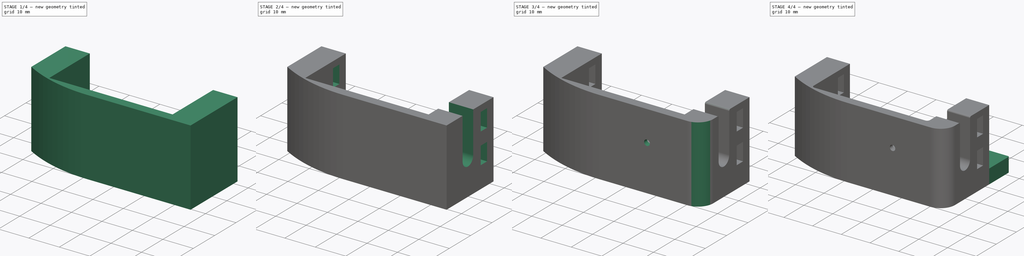
[diagram: build sequence overview — one tinted view per stage of 4, left to right]
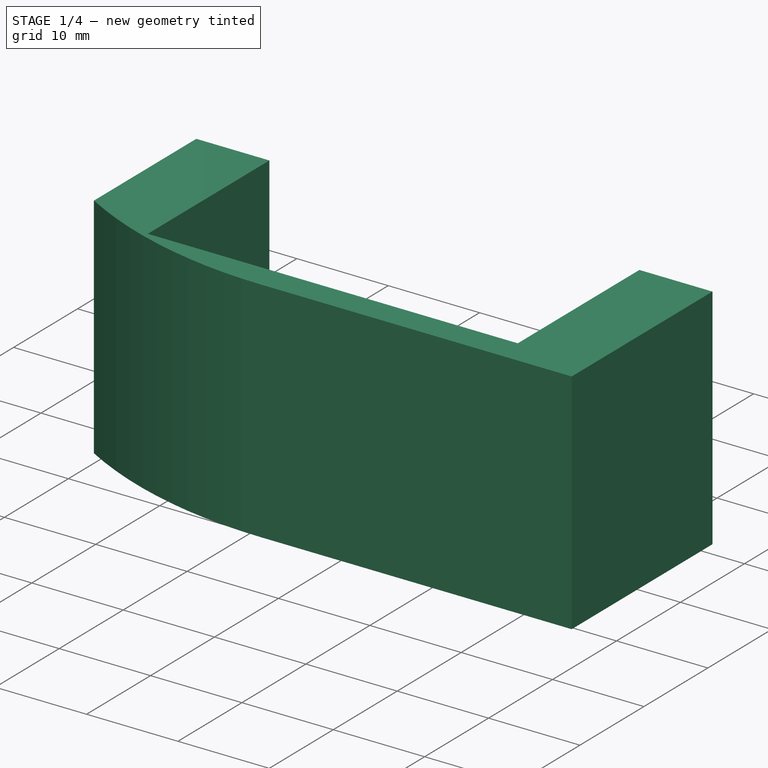
[diagram: stage 1 of 4 — iso view after this stage's code; geometry added in this stage tinted green]
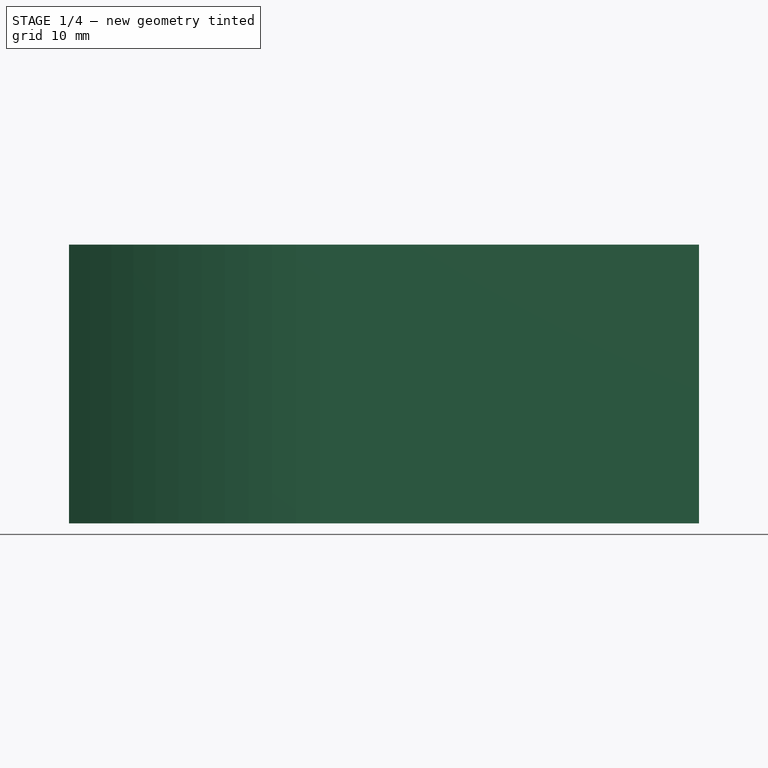
[diagram: stage 1 of 4 — front view after this stage's code; geometry added in this stage tinted green]
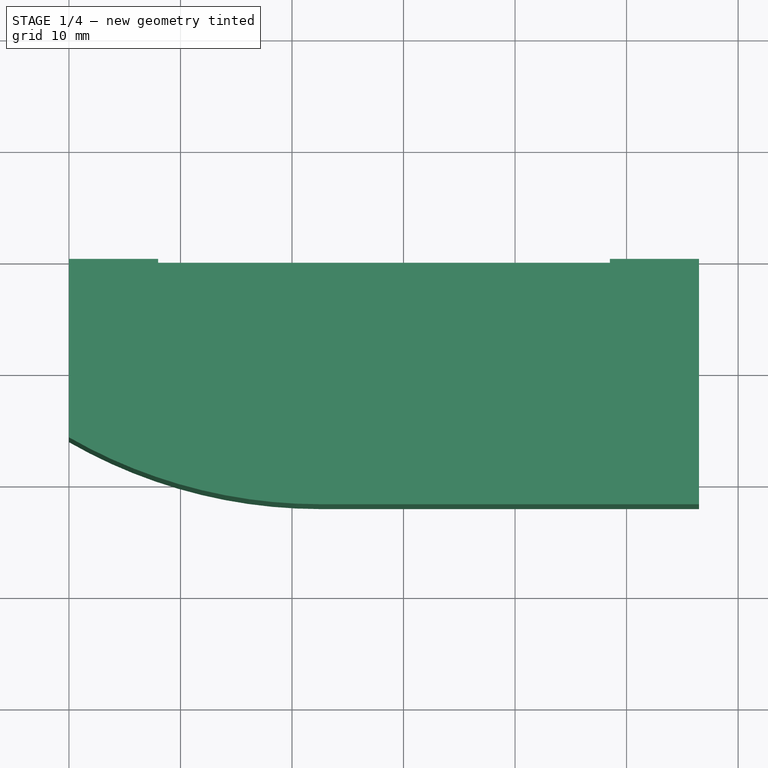
[diagram: stage 1 of 4 — top view after this stage's code; geometry added in this stage tinted green]
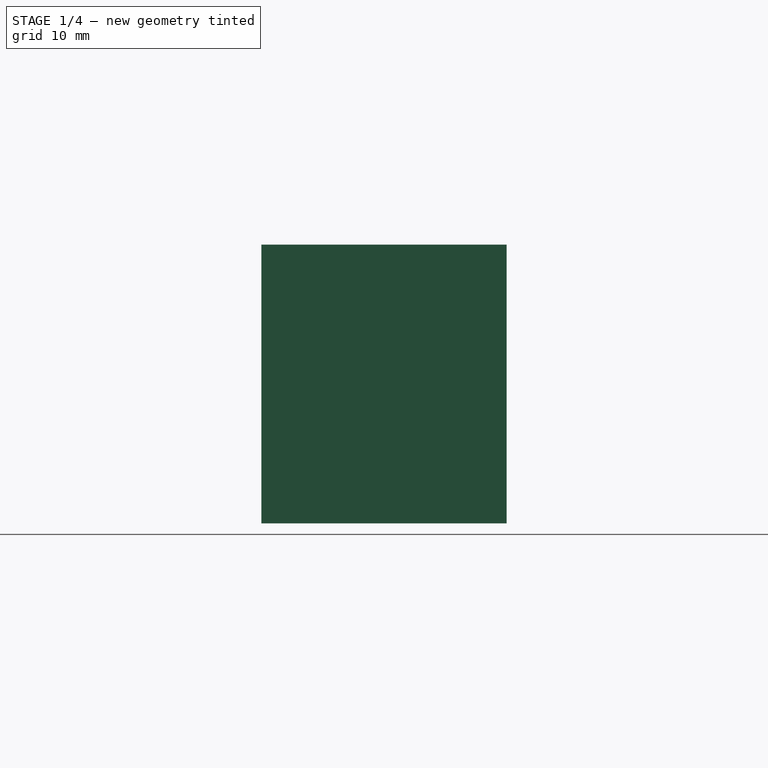
[diagram: stage 1 of 4 — right view after this stage's code; geometry added in this stage tinted green]
FCSTD DOCUMENT  (FreeCAD 0.18R4 (GitTag))
Label: Wrist _Counterpart
License: CreativeCommons Attribution-NonCommercial
LicenseURL: http://creativecommons.org/licenses/by-nc/4.0/
objects: Sketcher::SketchObject×9, PartDesign::Pocket×7, PartDesign::Fillet×4, PartDesign::Pad×2, PartDesign::Body×1
note: 32 computed .brp shape members not serialized (recipe doc carries the construction recipe); baked Part::Feature solids carry a one-line shape summary decoded from their .brp

FEATURE [Sketcher::SketchObject] Sketch125
  MapMode = 5
  Support = -> [XY_Plane010]
  sketch-geometry (4):
    g0: LineSegment StartX=0 StartY=0 StartZ=0 EndX=56.5 EndY=0 EndZ=0
    g1: LineSegment StartX=56.5 StartY=0 StartZ=0 EndX=56.5 EndY=-22 EndZ=0
    g2: LineSegment StartX=56.5 StartY=-22 StartZ=0 EndX=0 EndY=-22 EndZ=0
    g3: LineSegment StartX=0 StartY=-22 StartZ=0 EndX=0 EndY=0 EndZ=0
  constraints (11):
    c: Coincident(g0,g1)
    c: Coincident(g1,g2)
    c: Coincident(g2,g3)
    c: Coincident(g3,g0)
    c: Horizontal(g0)
    c: Horizontal(g2)
    c: Vertical(g1)
    c: Vertical(g3)
    c: Coincident(g0,g-1)
    c: DistanceX(g2,g2) = 56.5
    c: DistanceY(g3,g3) = 22
FEATURE [PartDesign::Pad] Pad023  label="Baseplate001"
  Length = 25
  Length2 = 100
  Profile = -> Sketch125
  Type = 0
FEATURE [Sketcher::SketchObject] Sketch126
  MapMode = 5
  Placement = pos=(0,0,25) rot=(0,0,1;0rad)
  Support = -> [Pad023]
  sketch-geometry (4):
    g0: LineSegment StartX=8 StartY=0 StartZ=0 EndX=48.5 EndY=0 EndZ=0
    g1: LineSegment StartX=48.5 StartY=0 StartZ=0 EndX=48.5 EndY=-19 EndZ=0
    g2: LineSegment StartX=48.5 StartY=-19 StartZ=0 EndX=8 EndY=-19 EndZ=0
    g3: LineSegment StartX=8 StartY=-19 StartZ=0 EndX=8 EndY=0 EndZ=0
  constraints (12):
    c: Coincident(g0,g1)
    c: Coincident(g1,g2)
    c: Coincident(g2,g3)
    c: Coincident(g3,g0)
    c: Horizontal(g0)
    c: Horizontal(g2)
    c: Vertical(g1)
    c: Vertical(g3)
    c: PointOnObject(g0,g-1)
    c: DistanceY(g3,g3) = 19
    c: DistanceX(g0,g0) = 40.5
    c: DistanceX(g-1,g0) = 8
FEATURE [PartDesign::Pocket] Pocket095  label="Servopocket"
  BaseFeature = -> Pad023
  Length = 20
  Length2 = 100
  Profile = -> Sketch126
  Type = 0
FEATURE [Sketcher::SketchObject] Sketch127
  MapMode = 5
  Placement = pos=(0,0,25) rot=(0,0,1;0rad)
  Support = -> [Pocket095]
  sketch-geometry (5):
    g0: ArcOfCircle CenterX=22.5 CenterY=23.1875 CenterZ=0 NormalX=0 NormalY=0 NormalZ=1 AngleXU=0 Radius=45.1875 StartAngle=4.19118 EndAngle=4.71239
    g1: LineSegment StartX=22.5 StartY=-22 StartZ=0 EndX=56.5 EndY=-22 EndZ=0
    g2: LineSegment StartX=56.5 StartY=-22 StartZ=0 EndX=56.5 EndY=-23 EndZ=0
    g3: LineSegment StartX=56.5 StartY=-23 StartZ=0 EndX=0 EndY=-23 EndZ=0
    g4: LineSegment StartX=0 StartY=-23 StartZ=0 EndX=0 EndY=-16 EndZ=0
  constraints (15):
    c: PointOnObject(g0,g-2)
    c: Horizontal(g1)
    c: Coincident(g2,g1)
    c: Vertical(g2)
    c: Coincident(g3,g2)
    c: Horizontal(g3)
    c: Coincident(g4,g3)
    c: Coincident(g4,g0)
    c: Vertical(g4)
    c: Tangent(g1,g0) = -1.5708
    c: DistanceX(g0,g0) = 22.5
    c: DistanceY(g4,g4) = 7
    c: DistanceY(g2,g2) = 1
    c: DistanceY(g0,g-1) = 16
    c: DistanceX(g3,g3) = 56.5
FEATURE [PartDesign::Pocket] Pocket096  label="Swing Counterpart"
  BaseFeature = -> Pocket095
  Length = 25
  Length2 = 100
  Profile = -> Sketch127
  Type = 0
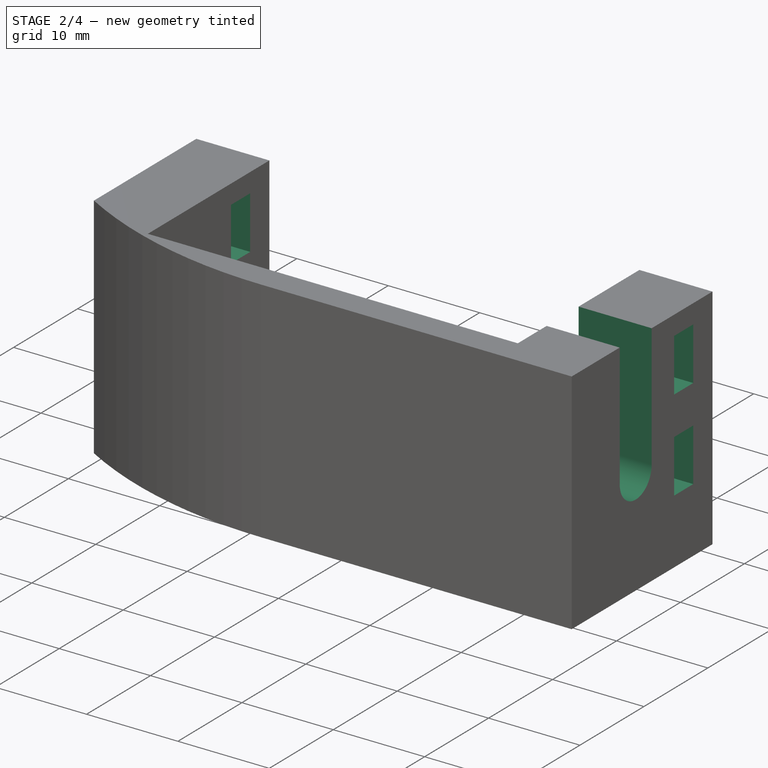
[diagram: stage 2 of 4 — iso view after this stage's code; geometry added in this stage tinted green]
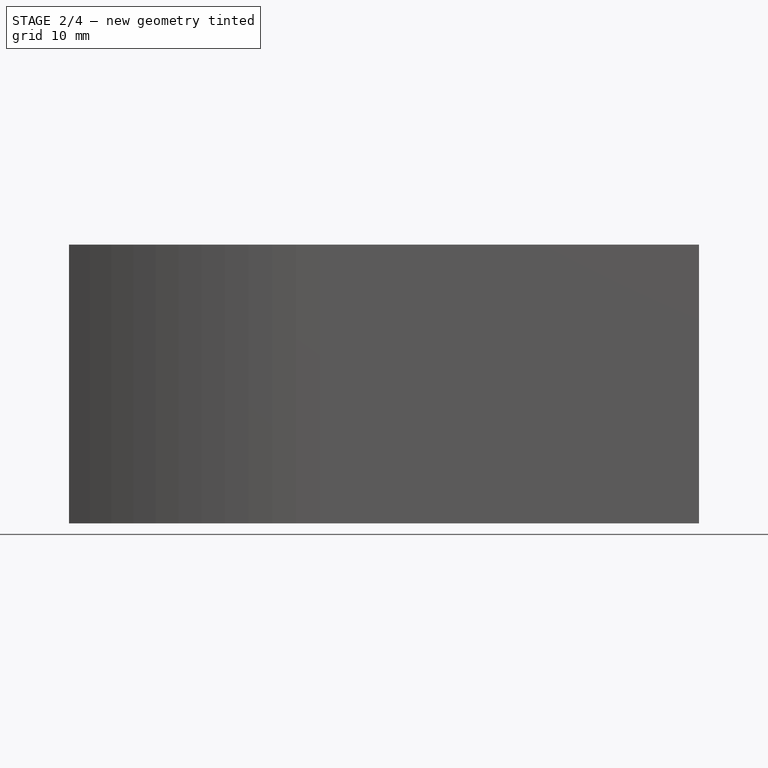
[diagram: stage 2 of 4 — front view after this stage's code; geometry added in this stage tinted green]
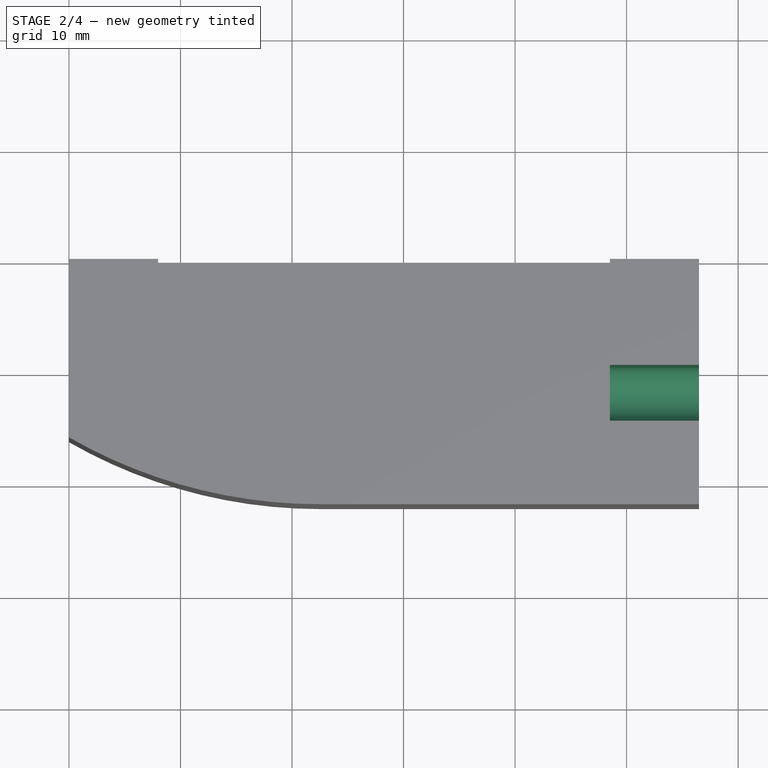
[diagram: stage 2 of 4 — top view after this stage's code; geometry added in this stage tinted green]
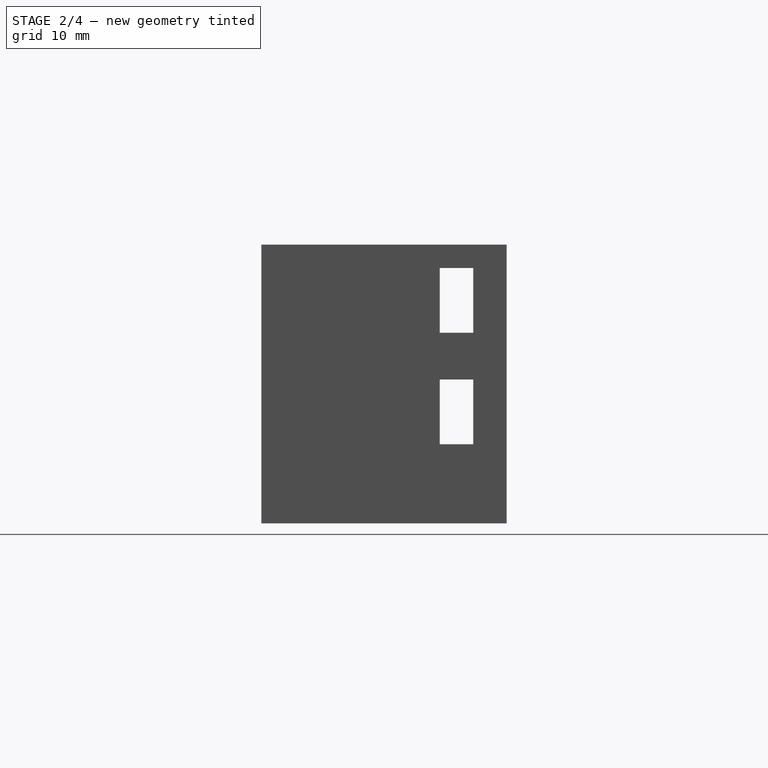
[diagram: stage 2 of 4 — right view after this stage's code; geometry added in this stage tinted green]
FEATURE [Sketcher::SketchObject] Sketch128
  MapMode = 5
  Placement = pos=(56.5,0,0) rot=(0.57735,0.57735,0.57735;2.0944rad)
  Support = -> [Pocket096]
  sketch-geometry (8):
    g0: LineSegment StartX=-6 StartY=22.9 StartZ=0 EndX=-3 EndY=22.9 EndZ=0
    g1: LineSegment StartX=-3 StartY=22.9 StartZ=0 EndX=-3 EndY=17.1 EndZ=0
    g2: LineSegment StartX=-3 StartY=17.1 StartZ=0 EndX=-6 EndY=17.1 EndZ=0
    g3: LineSegment StartX=-6 StartY=17.1 StartZ=0 EndX=-6 EndY=22.9 EndZ=0
    g4: LineSegment StartX=-6 StartY=12.9 StartZ=0 EndX=-3 EndY=12.9 EndZ=0
    g5: LineSegment StartX=-3 StartY=12.9 StartZ=0 EndX=-3 EndY=7.1 EndZ=0
    g6: LineSegment StartX=-3 StartY=7.1 StartZ=0 EndX=-6 EndY=7.1 EndZ=0
    g7: LineSegment StartX=-6 StartY=7.1 StartZ=0 EndX=-6 EndY=12.9 EndZ=0
  constraints (24):
    c: Coincident(g0,g1)
    c: Coincident(g1,g2)
    c: Coincident(g2,g3)
    c: Coincident(g3,g0)
    c: Horizontal(g0)
    c: Horizontal(g2)
    c: Vertical(g1)
    c: Vertical(g3)
    c: Coincident(g4,g5)
    c: Coincident(g5,g6)
    c: Coincident(g6,g7)
    c: Coincident(g7,g4)
    c: Horizontal(g4)
    c: Horizontal(g6)
    c: Vertical(g5)
    c: Vertical(g7)
    c: Equal(g1,g5)
    c: Equal(g4,g2)
    c: Vertical(g1,g4)
    c: DistanceX(g0,g0) = 3
    c: DistanceY(g1,g1) = 5.8
    c: DistanceY(g5,g1) = 10
    c: DistanceY(g-1,g5) = 7.1
    c: DistanceX(g5,g-1) = 3
FEATURE [PartDesign::Pocket] Pocket098  label="Nutholes"
  BaseFeature = -> Pocket096
  Length = 56.5
  Length2 = 100
  Profile = -> Sketch128
  Type = 0
FEATURE [Sketcher::SketchObject] Sketch130
  MapMode = 5
  Placement = pos=(0,0,0) rot=(0,0.707107,0.707107;3.14159rad)
  Support = -> [Pocket098]
  sketch-geometry (4):
    g0: Circle CenterX=-52.5 CenterY=20 CenterZ=0 NormalX=0 NormalY=0 NormalZ=1 AngleXU=0 Radius=1.6
    g1: Circle CenterX=-52.5 CenterY=10 CenterZ=0 NormalX=0 NormalY=0 NormalZ=1 AngleXU=0 Radius=1.6
    g2: Circle CenterX=-4 CenterY=20 CenterZ=0 NormalX=0 NormalY=0 NormalZ=1 AngleXU=0 Radius=1.6
    g3: Circle CenterX=-4 CenterY=10 CenterZ=0 NormalX=0 NormalY=0 NormalZ=1 AngleXU=0 Radius=1.6
  constraints (12):
    c: Horizontal(g2,g0)
    c: Horizontal(g1,g3)
    c: Vertical(g3,g2)
    c: Vertical(g0,g1)
    c: Equal(g0,g1)
    c: Equal(g1,g2)
    c: Equal(g2,g3)
    c: Radius(g2) = 1.6
    c: DistanceX(g0,g2) = 48.5
    c: DistanceY(g3,g2) = 10
    c: DistanceY(g-1,g3) = 10
    c: DistanceX(g3,g-1) = 4
FEATURE [PartDesign::Pocket] Pocket099  label="Screwholes"
  BaseFeature = -> Pocket098
  Length = 8.5
  Length2 = 100
  Profile = -> Sketch130
  Type = 0
FEATURE [Sketcher::SketchObject] Sketch131
  MapMode = 5
  Placement = pos=(56.5,0,0) rot=(0.57735,0.57735,0.57735;2.0944rad)
  Support = -> [Pocket099]
  sketch-geometry (4):
    g0: ArcOfCircle CenterX=-12 CenterY=11.5 CenterZ=0 NormalX=0 NormalY=0 NormalZ=1 AngleXU=0 Radius=2.5 StartAngle=3.14159 EndAngle=6.28319
    g1: LineSegment StartX=-14.5 StartY=11.5 StartZ=0 EndX=-14.5 EndY=25 EndZ=0
    g2: LineSegment StartX=-14.5 StartY=25 StartZ=0 EndX=-9.5 EndY=25 EndZ=0
    g3: LineSegment StartX=-9.5 StartY=25 StartZ=0 EndX=-9.5 EndY=11.5 EndZ=0
  constraints (13):
    c: Horizontal(g0,g0)
    c: Horizontal(g0,g0)
    c: Coincident(g1,g0)
    c: Vertical(g1)
    c: Coincident(g2,g1)
    c: Horizontal(g2)
    c: Coincident(g3,g2)
    c: Coincident(g3,g0)
    c: Vertical(g3)
    c: Radius(g0) = 2.5
    c: DistanceX(g0,g-1) = 12
    c: DistanceY(g-1,g0) = 11.5
    c: DistanceY(g-1,g2) = 25
FEATURE [PartDesign::Pocket] Pocket100  label="Servocable Pocket"
  BaseFeature = -> Pocket099
  Length = 8
  Length2 = 100
  Profile = -> Sketch131
  Type = 0
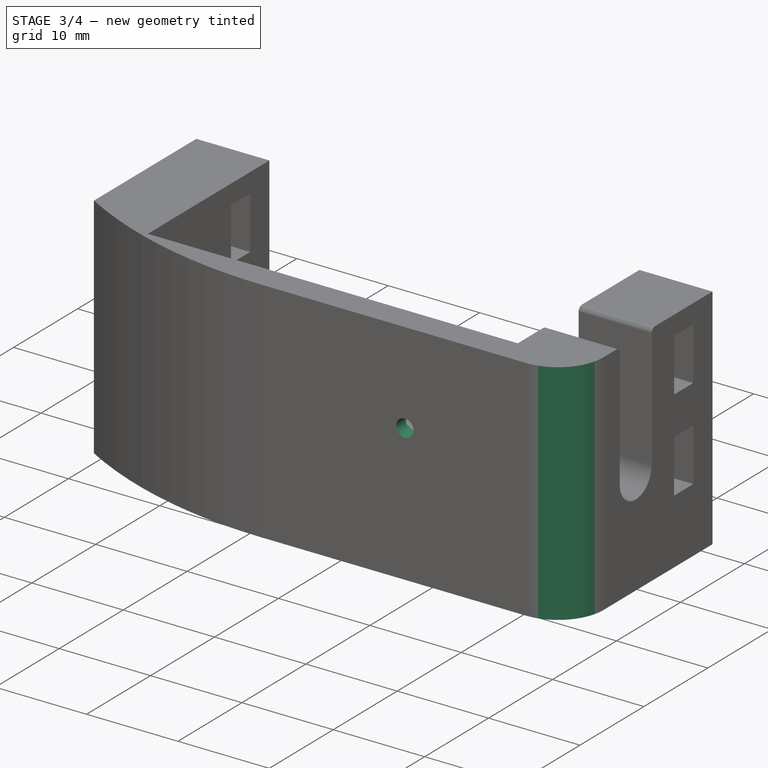
[diagram: stage 3 of 4 — iso view after this stage's code; geometry added in this stage tinted green]
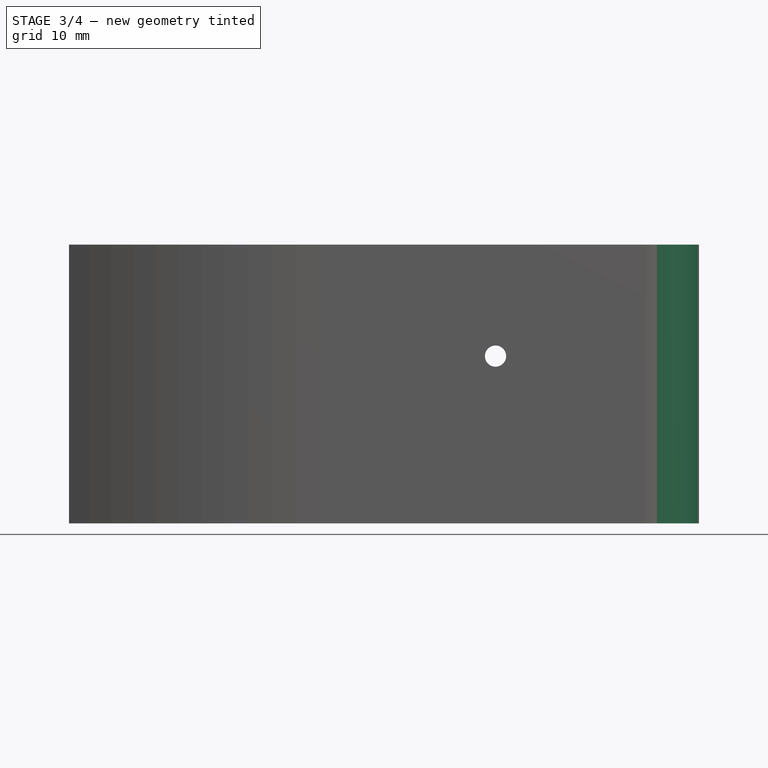
[diagram: stage 3 of 4 — front view after this stage's code; geometry added in this stage tinted green]
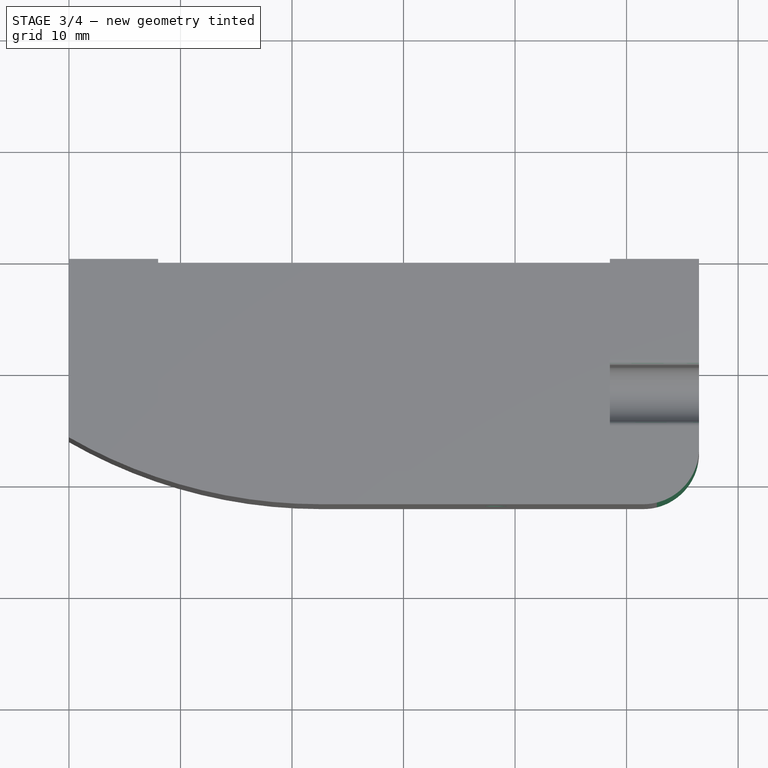
[diagram: stage 3 of 4 — top view after this stage's code; geometry added in this stage tinted green]
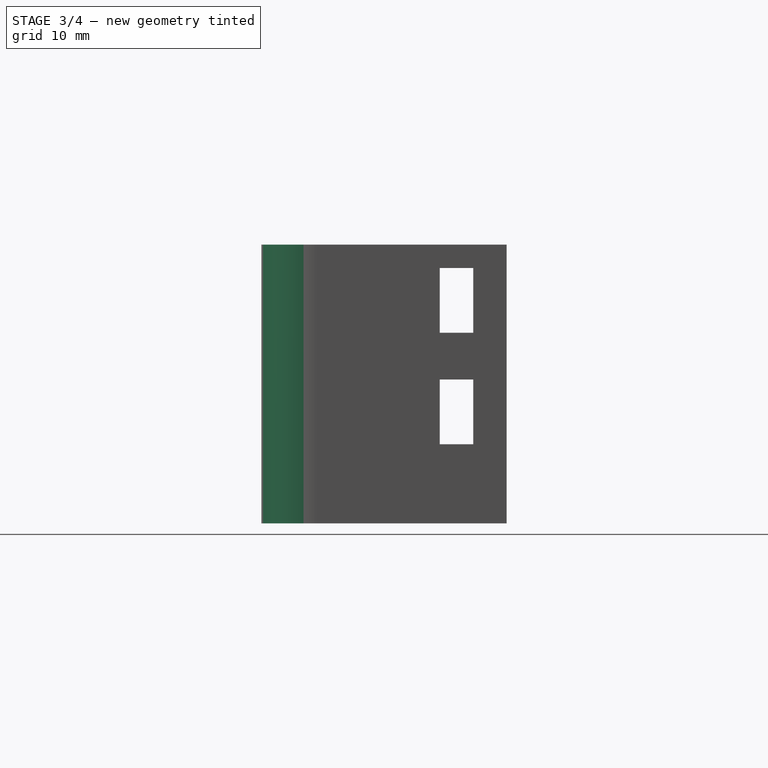
[diagram: stage 3 of 4 — right view after this stage's code; geometry added in this stage tinted green]
FEATURE [PartDesign::Fillet] Fillet035  label="Servocable Smooth Edges"
  Base = -> Pocket100 [Edge48,Edge43]
  BaseFeature = -> Pocket100
  Radius = 0.5
FEATURE [Sketcher::SketchObject] Sketch132
  MapMode = 5
  Placement = pos=(0,-22,0) rot=(1,0,0;1.5708rad)
  Support = -> [Fillet035]
  sketch-geometry (1):
    g0: Circle CenterX=38.25 CenterY=15 CenterZ=0 NormalX=0 NormalY=0 NormalZ=1 AngleXU=0 Radius=0.95
  constraints (3):
    c: DistanceY(g-1,g0) = 15
    c: DistanceX(g-1,g0) = 38.25
    c: Radius(g0) = 0.95
FEATURE [PartDesign::Pocket] Pocket101  label="Ball Bearing Pin Screwhole"
  BaseFeature = -> Fillet035
  Length = 3
  Length2 = 100
  Profile = -> Sketch132
  Type = 0
FEATURE [Sketcher::SketchObject] Sketch133
  ExternalGeometry = -> [Pocket101]
  MapMode = 5
  Placement = pos=(0,-19,0) rot=(0,0.707107,0.707107;3.14159rad)
  Support = -> [Pocket101]
  sketch-geometry (7):
    g0: LineSegment StartX=-36.2 StartY=16.1836 StartZ=0 EndX=-38.25 EndY=17.3671 EndZ=0
    g1: LineSegment StartX=-38.25 StartY=17.3671 StartZ=0 EndX=-40.3 EndY=16.1836 EndZ=0
    g2: LineSegment StartX=-40.3 StartY=16.1836 StartZ=0 EndX=-40.3 EndY=13.8164 EndZ=0
    g3: LineSegment StartX=-40.3 StartY=13.8164 StartZ=0 EndX=-38.25 EndY=12.6329 EndZ=0
    g4: LineSegment StartX=-38.25 StartY=12.6329 StartZ=0 EndX=-36.2 EndY=13.8164 EndZ=0
    g5: LineSegment StartX=-36.2 StartY=13.8164 StartZ=0 EndX=-36.2 EndY=16.1836 EndZ=0
    g6: Circle [constr] CenterX=-38.25 CenterY=15 CenterZ=0 NormalX=0 NormalY=0 NormalZ=1 AngleXU=0 Radius=2.36714
  constraints (16):
    c: Coincident(g0,g1)
    c: Coincident(g1,g2)
    c: Coincident(g2,g3)
    c: Coincident(g3,g4)
    c: Coincident(g4,g5)
    c: Coincident(g5,g0)
    c: Equal(g0, g1-g5) x5
    c: PointOnObject(g0,g6)
    c: PointOnObject(g1,g6)
    c: PointOnObject(g2,g6)
    c: PointOnObject(g3,g6)
    c: PointOnObject(g4,g6)
    c: PointOnObject(g5,g6)
    c: Coincident(g6,g-3)
    c: Vertical(g5)
    c: DistanceX(g1,g0) = 4.1
FEATURE [PartDesign::Pocket] Pocket102  label="Ball Bearing Pin Nuthole"
  BaseFeature = -> Pocket101
  Length = 1.5
  Length2 = 100
  Profile = -> Sketch133
  Type = 0
FEATURE [PartDesign::Fillet] Fillet036  label="Smooth Counterpart Corner"
  Base = -> Pocket102 [Edge3]
  BaseFeature = -> Pocket102
  Radius = 5
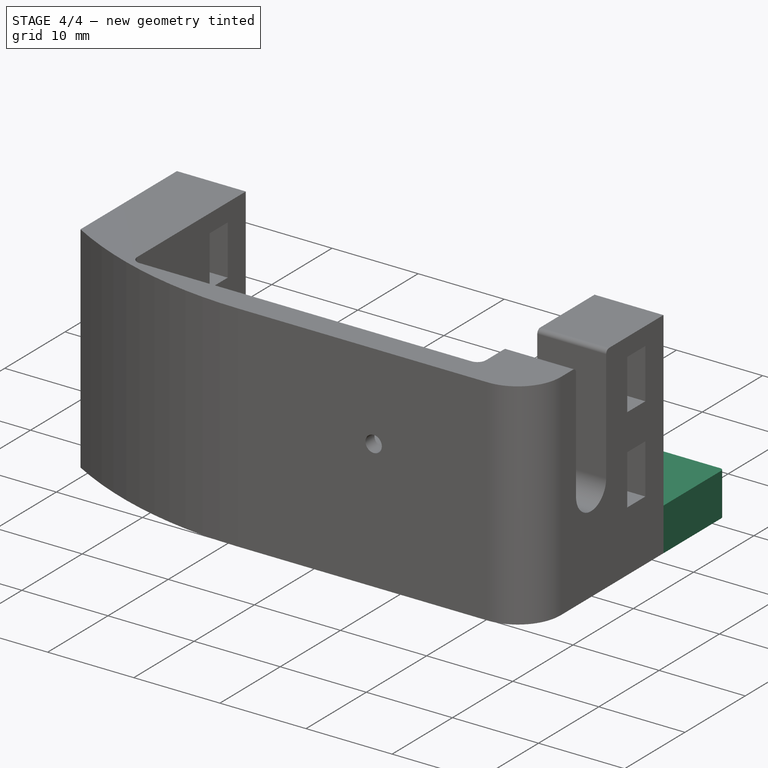
[diagram: stage 4 of 4 — iso view after this stage's code; geometry added in this stage tinted green]
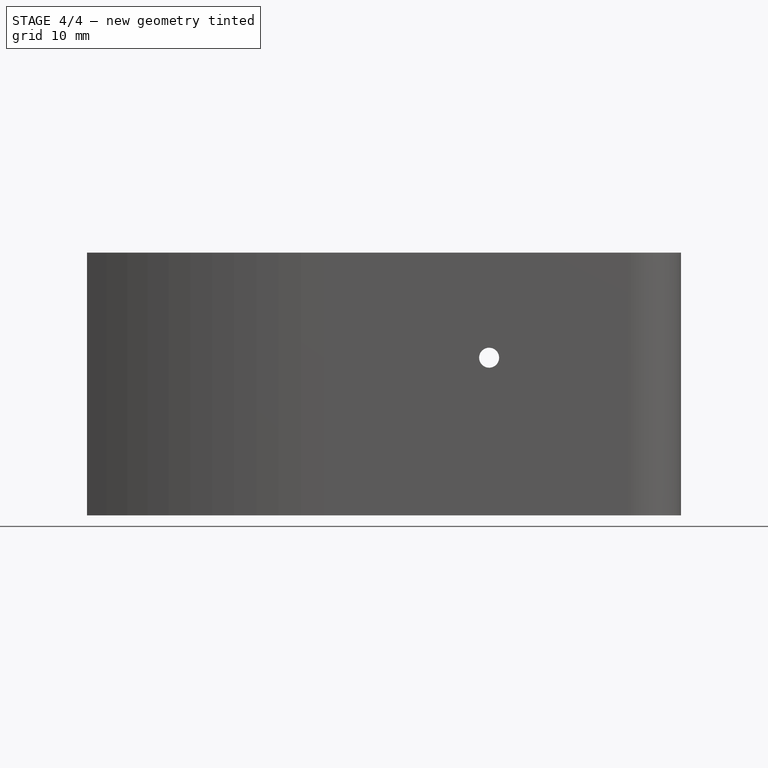
[diagram: stage 4 of 4 — front view after this stage's code; geometry added in this stage tinted green]
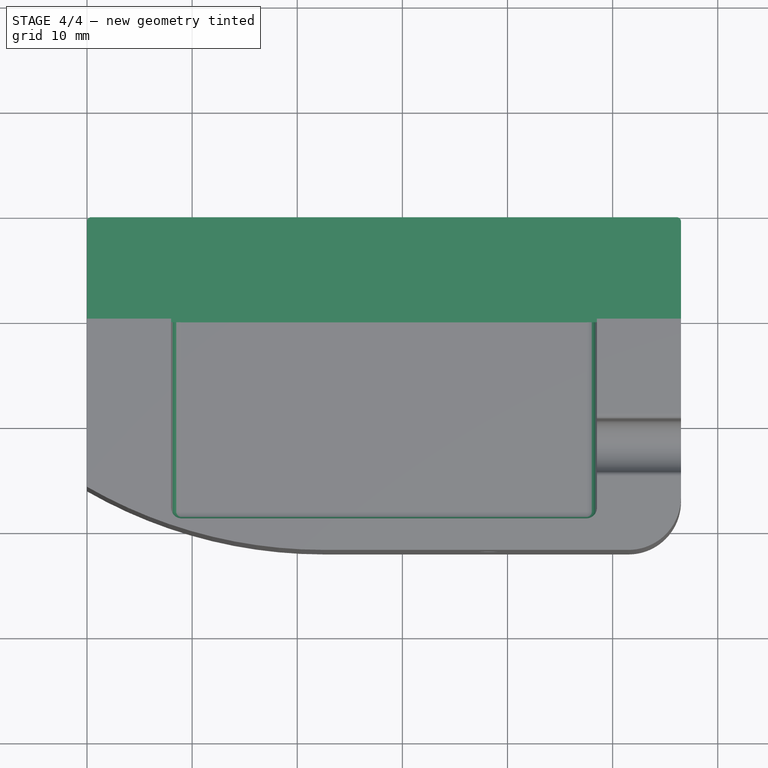
[diagram: stage 4 of 4 — top view after this stage's code; geometry added in this stage tinted green]
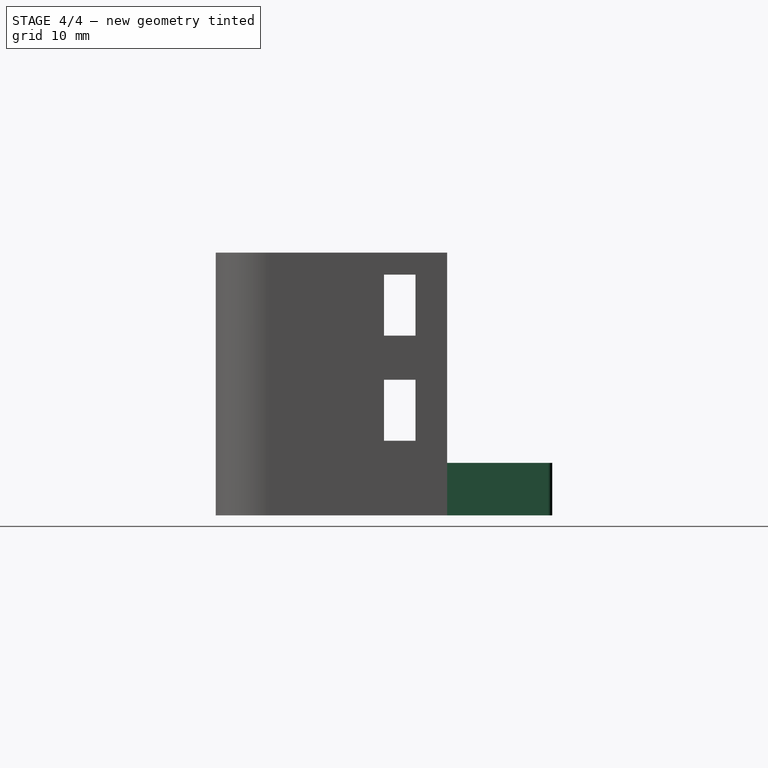
[diagram: stage 4 of 4 — right view after this stage's code; geometry added in this stage tinted green]
FEATURE [PartDesign::Fillet] Fillet037  label="Smooth Servo Pocket"
  Base = -> Fillet036 [Edge80,Edge77,Edge76,Edge79,Edge95]
  BaseFeature = -> Fillet036
  Radius = 1
FEATURE [Sketcher::SketchObject] Sketch
  MapMode = 5
  Placement = pos=(0,0,0) rot=(0,0.707107,0.707107;3.14159rad)
  Support = -> [Fillet037]
  sketch-geometry (4):
    g0: LineSegment StartX=0 StartY=0 StartZ=0 EndX=-56.5 EndY=0 EndZ=0
    g1: LineSegment StartX=-56.5 StartY=0 StartZ=0 EndX=-56.5 EndY=5 EndZ=0
    g2: LineSegment StartX=-56.5 StartY=5 StartZ=0 EndX=0 EndY=5 EndZ=0
    g3: LineSegment StartX=0 StartY=5 StartZ=0 EndX=0 EndY=0 EndZ=0
  constraints (11):
    c: Coincident(g0,g1)
    c: Coincident(g1,g2)
    c: Coincident(g2,g3)
    c: Coincident(g3,g0)
    c: Horizontal(g0)
    c: Horizontal(g2)
    c: Vertical(g1)
    c: Vertical(g3)
    c: Coincident(g0,g-1)
    c: DistanceY(g1,g1) = 5
    c: DistanceX(g2,g2) = 56.5
FEATURE [PartDesign::Pad] Pad  label="Elongate Baseplate"
  BaseFeature = -> Fillet037
  Length = 10
  Length2 = 100
  Profile = -> Sketch
  Type = 0
FEATURE [PartDesign::Fillet] Fillet  label="Smooth Edges"
  Base = -> Pad [Edge135,Edge159]
  BaseFeature = -> Pad
  Radius = 0.4
FEATURE [PartDesign::Body] Body008  label="Wrist_Counterpart"
  Group = -> [Sketch125,Pad023,Sketch126,Pocket095,Sketch127,Pocket096,Sketch128,Pocket098,Sketch130,Pocket099,Sketch131,Pocket100,Fillet035,Sketch132,Pocket101,Sketch133,Pocket102,Fillet036,Fillet037,Sketch,Pad,Fillet]
  Origin = -> Origin010
  Tip = -> Fillet
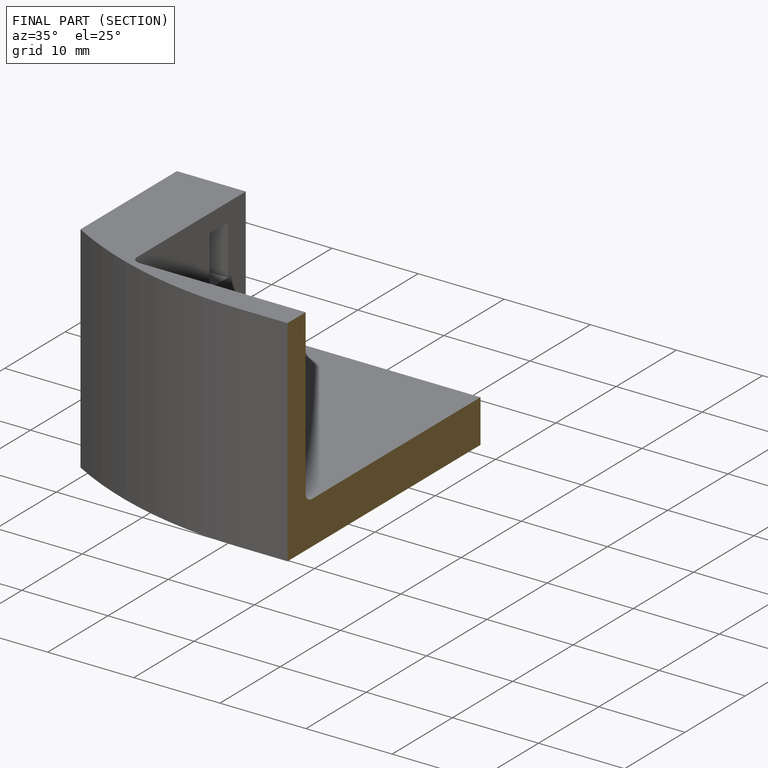
[diagram: finished part — half-section view (interior)]
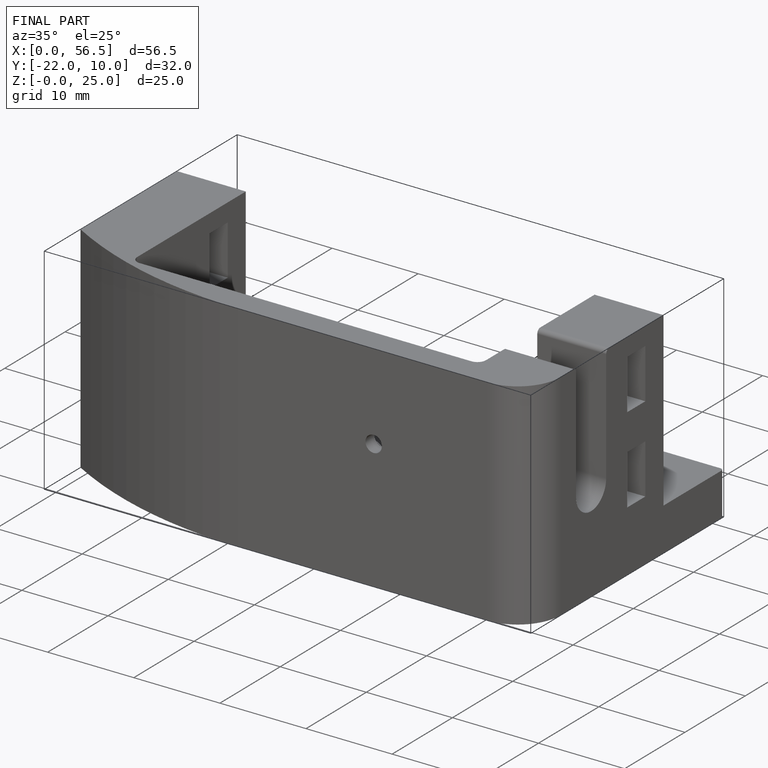
[diagram: finished part — iso view with bounding-box wireframe]
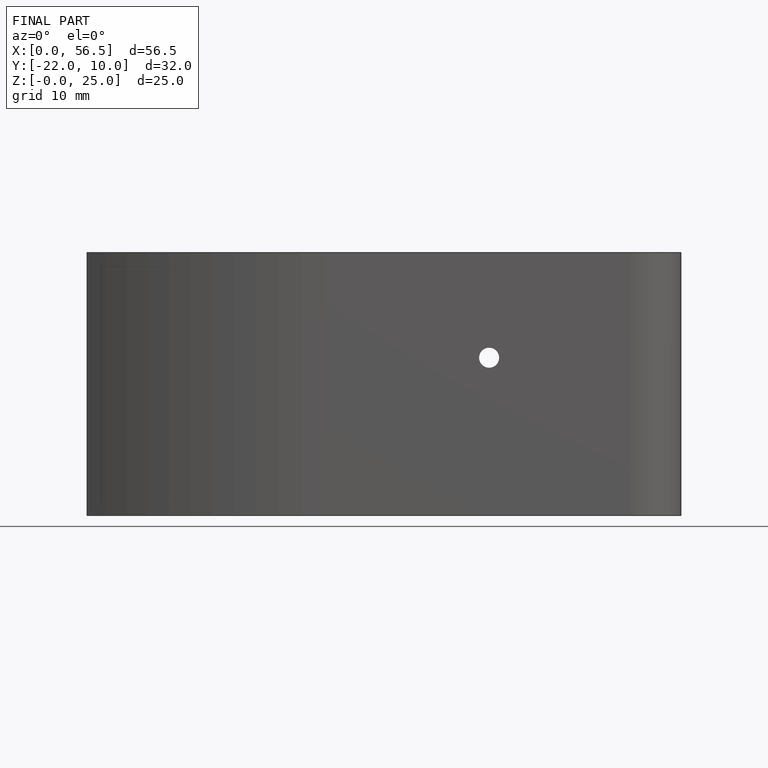
[diagram: finished part — front view with bounding-box wireframe]
